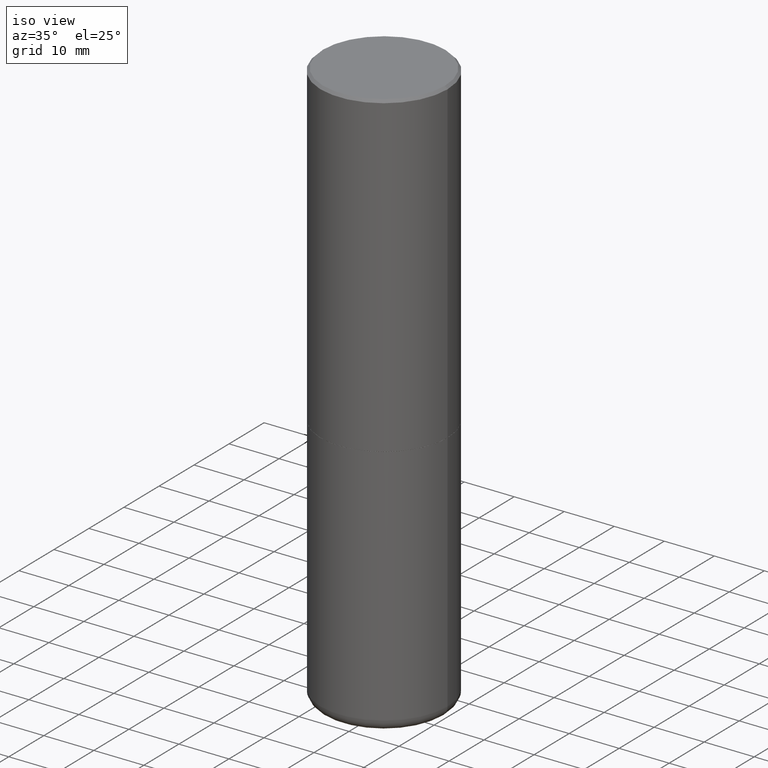
[diagram: clean part render]
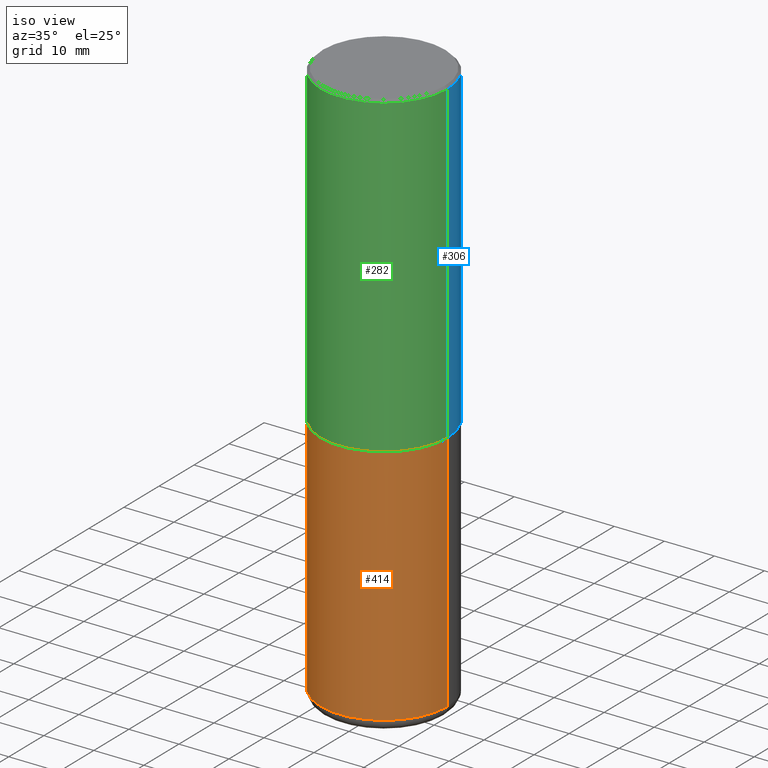
[diagram: same view with three faces highlighted in distinct colors, each labeled with its STEP entity id]
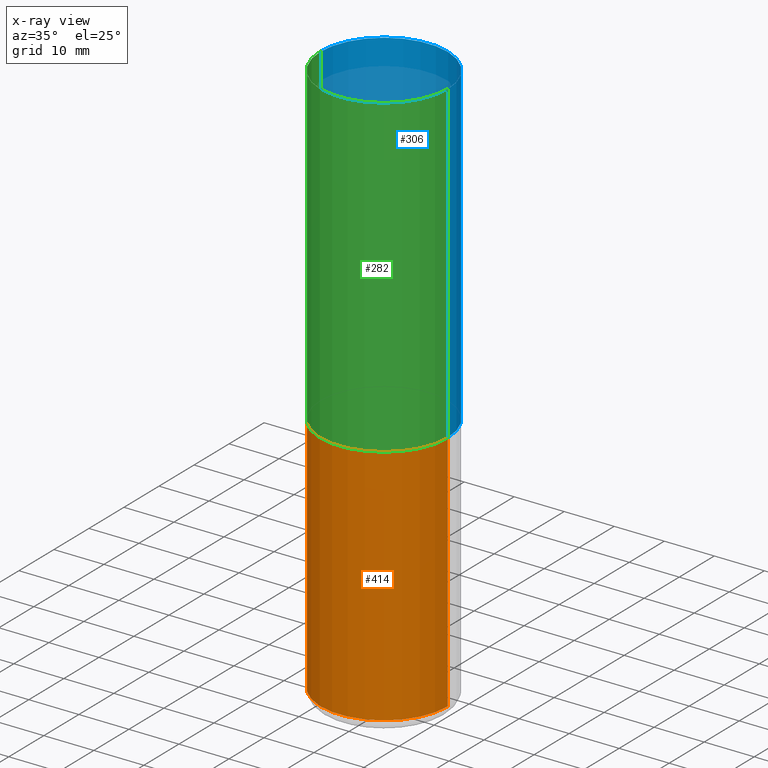
[diagram: x-ray of the same camera — body ghosted, the three highlighted faces saturated]
A machine part, iso view with three faces highlighted in distinct colors.
The next image is the same camera in x-ray (body ghosted, the three faces saturated) — at least one of them is partly hidden behind the body in this view.
Their STEP definitions:

[orange] entity #414 — the highlighted cylindrical surface (partial cylindrical patch) has radius 12.7 mm, axis along (-0, 0, 1).
#5 = DIRECTION ( 'NONE',  ( 1.000000000000000000, -6.982962677686269077E-15, 0.000000000000000000 ) ) ;
#10 = CARTESIAN_POINT ( 'NONE',  ( 0.5000000000000000000, -1.888891404314140383E-14, -4.410000000000000142 ) ) ;
#24 = EDGE_CURVE ( 'NONE', #32, #162, #131, .T. ) ;
#32 = VERTEX_POINT ( 'NONE', #415 ) ;
#37 = AXIS2_PLACEMENT_3D ( 'NONE', #382, #286, #349 ) ;
#43 = DIRECTION ( 'NONE',  ( -2.445468806185136597E-29, 3.491481338843145583E-15, 1.000000000000000000 ) ) ;
#62 = DIRECTION ( 'NONE',  ( -2.445468806185136877E-29, 3.491481338843145188E-15, 1.000000000000000000 ) ) ;
#69 = CARTESIAN_POINT ( 'NONE',  ( -0.5000000000000000000, 3.552713678800500929E-15, -2.459467545127452891E-29 ) ) ;
#87 = EDGE_CURVE ( 'NONE', #162, #299, #385, .T. ) ;
#95 = DIRECTION ( 'NONE',  ( -2.445468806185136877E-29, 3.491481338843145188E-15, 1.000000000000000000 ) ) ;
#131 = CIRCLE ( 'NONE', #358, 0.5000000000000000000 ) ;
#135 = EDGE_CURVE ( 'NONE', #366, #299, #225, .T. ) ;
#162 = VERTEX_POINT ( 'NONE', #10 ) ;
#172 = CARTESIAN_POINT ( 'NONE',  ( 1.078451743527645302E-28, -1.539743270429827363E-14, -4.410000000000000142 ) ) ;
#184 = CYLINDRICAL_SURFACE ( 'NONE', #37, 0.5000000000000000000 ) ;
#187 = EDGE_CURVE ( 'NONE', #32, #366, #193, .T. ) ;
#193 = LINE ( 'NONE', #69, #334 ) ;
#196 = VECTOR ( 'NONE', #62, 39.37007874015748143 ) ;
#200 = ORIENTED_EDGE ( 'NONE', *, *, #135, .F. ) ;
#225 = CIRCLE ( 'NONE', #323, 0.5000000000000000000 ) ;
#229 = FACE_OUTER_BOUND ( 'NONE', #250, .T. ) ;
#230 = CARTESIAN_POINT ( 'NONE',  ( 0.5000000000000000000, -3.491481338843133355E-15, 2.438088387897967896E-29 ) ) ;
#237 = CARTESIAN_POINT ( 'NONE',  ( 6.113672015462842613E-29, -8.728703347107864943E-15, -2.500000000000000000 ) ) ;
#250 = EDGE_LOOP ( 'NONE', ( #266, #324, #390, #200 ) ) ;
#266 = ORIENTED_EDGE ( 'NONE', *, *, #187, .F. ) ;
#286 = DIRECTION ( 'NONE',  ( -2.445468806185136597E-29, 3.491481338843145583E-15, 1.000000000000000000 ) ) ;
#295 = DIRECTION ( 'NONE',  ( -2.445468806185136597E-29, 3.491481338843145583E-15, 1.000000000000000000 ) ) ;
#299 = VERTEX_POINT ( 'NONE', #307 ) ;
#307 = CARTESIAN_POINT ( 'NONE',  ( 0.5000000000000000000, -1.222018468595099830E-14, -2.500000000000000000 ) ) ;
#311 = CARTESIAN_POINT ( 'NONE',  ( -0.5000000000000000000, -8.510354346902568358E-15, -2.500000000000000000 ) ) ;
#323 = AXIS2_PLACEMENT_3D ( 'NONE', #237, #295, #5 ) ;
#324 = ORIENTED_EDGE ( 'NONE', *, *, #24, .T. ) ;
#334 = VECTOR ( 'NONE', #95, 39.37007874015748143 ) ;
#349 = DIRECTION ( 'NONE',  ( 1.000000000000000000, -6.982962677686266711E-15, 4.876176775795935793E-29 ) ) ;
#358 = AXIS2_PLACEMENT_3D ( 'NONE', #172, #43, #402 ) ;
#366 = VERTEX_POINT ( 'NONE', #311 ) ;
#382 = CARTESIAN_POINT ( 'NONE',  ( 0.000000000000000000, 0.000000000000000000, 0.000000000000000000 ) ) ;
#385 = LINE ( 'NONE', #230, #196 ) ;
#390 = ORIENTED_EDGE ( 'NONE', *, *, #87, .T. ) ;
#402 = DIRECTION ( 'NONE',  ( 1.000000000000000000, -6.982962677686270655E-15, 0.000000000000000000 ) ) ;
#414 = ADVANCED_FACE ( 'NONE', ( #229 ), #184, .T. ) ;
#415 = CARTESIAN_POINT ( 'NONE',  ( -0.5000000000000000000, -1.184471902549777113E-14, -4.410000000000000142 ) ) ;

[blue] entity #306 — the highlighted cylindrical surface (partial cylindrical patch) has radius 12.7 mm, axis along (-0, 0, 1).
#9 = VERTEX_POINT ( 'NONE', #178 ) ;
#11 = EDGE_CURVE ( 'NONE', #247, #9, #80, .T. ) ;
#14 = DIRECTION ( 'NONE',  ( -2.445468806185136597E-29, 3.491481338843145583E-15, 1.000000000000000000 ) ) ;
#16 = CARTESIAN_POINT ( 'NONE',  ( 0.5000000000000001110, -3.500078625662629868E-15, -0.02000000000000010797 ) ) ;
#40 = DIRECTION ( 'NONE',  ( -2.445468806185136597E-29, 3.491481338843145583E-15, 1.000000000000000000 ) ) ;
#48 = DIRECTION ( 'NONE',  ( -2.445468806185136597E-29, 3.491481338843145583E-15, 1.000000000000000000 ) ) ;
#66 = EDGE_LOOP ( 'NONE', ( #103, #340, #400, #325 ) ) ;
#72 = DIRECTION ( 'NONE',  ( 1.000000000000000000, -6.982962677686269866E-15, 0.000000000000000000 ) ) ;
#73 = LINE ( 'NONE', #377, #353 ) ;
#80 = CIRCLE ( 'NONE', #316, 0.5000000000000001110 ) ;
#88 = CARTESIAN_POINT ( 'NONE',  ( 0.5000000000000001110, -3.491481338843134539E-15, 2.438088387897968457E-29 ) ) ;
#90 = EDGE_CURVE ( 'NONE', #256, #247, #192, .T. ) ;
#101 = EDGE_CURVE ( 'NONE', #262, #9, #73, .T. ) ;
#103 = ORIENTED_EDGE ( 'NONE', *, *, #386, .T. ) ;
#113 = AXIS2_PLACEMENT_3D ( 'NONE', #177, #48, #365 ) ;
#144 = CARTESIAN_POINT ( 'NONE',  ( 6.111226546656657010E-29, -8.725211865769021935E-15, -2.499000000000000110 ) ) ;
#145 = DIRECTION ( 'NONE',  ( 1.000000000000000000, -6.982962677686265922E-15, 0.000000000000000000 ) ) ;
#146 = CARTESIAN_POINT ( 'NONE',  ( 0.5000000000000002220, -1.221669320461215845E-14, -2.499000000000000110 ) ) ;
#177 = CARTESIAN_POINT ( 'NONE',  ( 0.000000000000000000, 0.000000000000000000, 0.000000000000000000 ) ) ;
#178 = CARTESIAN_POINT ( 'NONE',  ( -0.5000000000000001110, 3.421651712066270452E-15, -0.02000000000000010797 ) ) ;
#192 = LINE ( 'NONE', #88, #348 ) ;
#203 = FACE_OUTER_BOUND ( 'NONE', #66, .T. ) ;
#247 = VERTEX_POINT ( 'NONE', #16 ) ;
#255 = AXIS2_PLACEMENT_3D ( 'NONE', #144, #40, #72 ) ;
#256 = VERTEX_POINT ( 'NONE', #146 ) ;
#262 = VERTEX_POINT ( 'NONE', #401 ) ;
#275 = CYLINDRICAL_SURFACE ( 'NONE', #113, 0.5000000000000001110 ) ;
#280 = DIRECTION ( 'NONE',  ( -2.445468806185136877E-29, 3.491481338843145188E-15, 1.000000000000000000 ) ) ;
#306 = ADVANCED_FACE ( 'NONE', ( #203 ), #275, .T. ) ;
#316 = AXIS2_PLACEMENT_3D ( 'NONE', #394, #14, #145 ) ;
#325 = ORIENTED_EDGE ( 'NONE', *, *, #90, .F. ) ;
#340 = ORIENTED_EDGE ( 'NONE', *, *, #101, .T. ) ;
#348 = VECTOR ( 'NONE', #280, 39.37007874015748143 ) ;
#350 = DIRECTION ( 'NONE',  ( -2.445468806185136877E-29, 3.491481338843145188E-15, 1.000000000000000000 ) ) ;
#353 = VECTOR ( 'NONE', #350, 39.37007874015748143 ) ;
#365 = DIRECTION ( 'NONE',  ( 1.000000000000000000, -6.982962677686267499E-15, 4.876176775795935793E-29 ) ) ;
#377 = CARTESIAN_POINT ( 'NONE',  ( -0.5000000000000001110, 3.552713678800501718E-15, -2.459467545127453732E-29 ) ) ;
#386 = EDGE_CURVE ( 'NONE', #256, #262, #404, .T. ) ;
#394 = CARTESIAN_POINT ( 'NONE',  ( 4.890937612370299433E-31, -6.982962677686328587E-17, -0.02000000000000010797 ) ) ;
#400 = ORIENTED_EDGE ( 'NONE', *, *, #11, .F. ) ;
#401 = CARTESIAN_POINT ( 'NONE',  ( -0.5000000000000002220, -8.448070674724393209E-16, -2.499000000000000110 ) ) ;
#404 = CIRCLE ( 'NONE', #255, 0.5000000000000002220 ) ;

[green] entity #282 — the highlighted cylindrical surface (partial cylindrical patch) has radius 12.7 mm, axis along (-0, 0, 1).
#4 = ORIENTED_EDGE ( 'NONE', *, *, #296, .F. ) ;
#9 = VERTEX_POINT ( 'NONE', #178 ) ;
#16 = CARTESIAN_POINT ( 'NONE',  ( 0.5000000000000001110, -3.500078625662629868E-15, -0.02000000000000010797 ) ) ;
#21 = DIRECTION ( 'NONE',  ( -2.445468806185136597E-29, 3.491481338843145583E-15, 1.000000000000000000 ) ) ;
#26 = CIRCLE ( 'NONE', #211, 0.5000000000000002220 ) ;
#44 = AXIS2_PLACEMENT_3D ( 'NONE', #337, #21, #398 ) ;
#73 = LINE ( 'NONE', #377, #353 ) ;
#75 = DIRECTION ( 'NONE',  ( 1.000000000000000000, -6.982962677686267499E-15, 4.876176775795935793E-29 ) ) ;
#81 = AXIS2_PLACEMENT_3D ( 'NONE', #180, #277, #75 ) ;
#88 = CARTESIAN_POINT ( 'NONE',  ( 0.5000000000000001110, -3.491481338843134539E-15, 2.438088387897968457E-29 ) ) ;
#90 = EDGE_CURVE ( 'NONE', #256, #247, #192, .T. ) ;
#101 = EDGE_CURVE ( 'NONE', #262, #9, #73, .T. ) ;
#106 = FACE_OUTER_BOUND ( 'NONE', #140, .T. ) ;
#114 = DIRECTION ( 'NONE',  ( -2.445468806185136597E-29, 3.491481338843145583E-15, 1.000000000000000000 ) ) ;
#140 = EDGE_LOOP ( 'NONE', ( #238, #253, #293, #4 ) ) ;
#146 = CARTESIAN_POINT ( 'NONE',  ( 0.5000000000000002220, -1.221669320461215845E-14, -2.499000000000000110 ) ) ;
#178 = CARTESIAN_POINT ( 'NONE',  ( -0.5000000000000001110, 3.421651712066270452E-15, -0.02000000000000010797 ) ) ;
#180 = CARTESIAN_POINT ( 'NONE',  ( 0.000000000000000000, 0.000000000000000000, 0.000000000000000000 ) ) ;
#192 = LINE ( 'NONE', #88, #348 ) ;
#211 = AXIS2_PLACEMENT_3D ( 'NONE', #363, #114, #361 ) ;
#238 = ORIENTED_EDGE ( 'NONE', *, *, #101, .F. ) ;
#247 = VERTEX_POINT ( 'NONE', #16 ) ;
#251 = EDGE_CURVE ( 'NONE', #262, #256, #26, .T. ) ;
#253 = ORIENTED_EDGE ( 'NONE', *, *, #251, .T. ) ;
#256 = VERTEX_POINT ( 'NONE', #146 ) ;
#262 = VERTEX_POINT ( 'NONE', #401 ) ;
#271 = CYLINDRICAL_SURFACE ( 'NONE', #81, 0.5000000000000001110 ) ;
#277 = DIRECTION ( 'NONE',  ( -2.445468806185136597E-29, 3.491481338843145583E-15, 1.000000000000000000 ) ) ;
#280 = DIRECTION ( 'NONE',  ( -2.445468806185136877E-29, 3.491481338843145188E-15, 1.000000000000000000 ) ) ;
#282 = ADVANCED_FACE ( 'NONE', ( #106 ), #271, .T. ) ;
#293 = ORIENTED_EDGE ( 'NONE', *, *, #90, .T. ) ;
#296 = EDGE_CURVE ( 'NONE', #9, #247, #412, .T. ) ;
#337 = CARTESIAN_POINT ( 'NONE',  ( 4.890937612370299433E-31, -6.982962677686328587E-17, -0.02000000000000010797 ) ) ;
#348 = VECTOR ( 'NONE', #280, 39.37007874015748143 ) ;
#350 = DIRECTION ( 'NONE',  ( -2.445468806185136877E-29, 3.491481338843145188E-15, 1.000000000000000000 ) ) ;
#353 = VECTOR ( 'NONE', #350, 39.37007874015748143 ) ;
#361 = DIRECTION ( 'NONE',  ( 1.000000000000000000, -6.982962677686269866E-15, 0.000000000000000000 ) ) ;
#363 = CARTESIAN_POINT ( 'NONE',  ( 6.111226546656657010E-29, -8.725211865769021935E-15, -2.499000000000000110 ) ) ;
#377 = CARTESIAN_POINT ( 'NONE',  ( -0.5000000000000001110, 3.552713678800501718E-15, -2.459467545127453732E-29 ) ) ;
#398 = DIRECTION ( 'NONE',  ( 1.000000000000000000, -6.982962677686265922E-15, 0.000000000000000000 ) ) ;
#401 = CARTESIAN_POINT ( 'NONE',  ( -0.5000000000000002220, -8.448070674724393209E-16, -2.499000000000000110 ) ) ;
#412 = CIRCLE ( 'NONE', #44, 0.5000000000000001110 ) ;